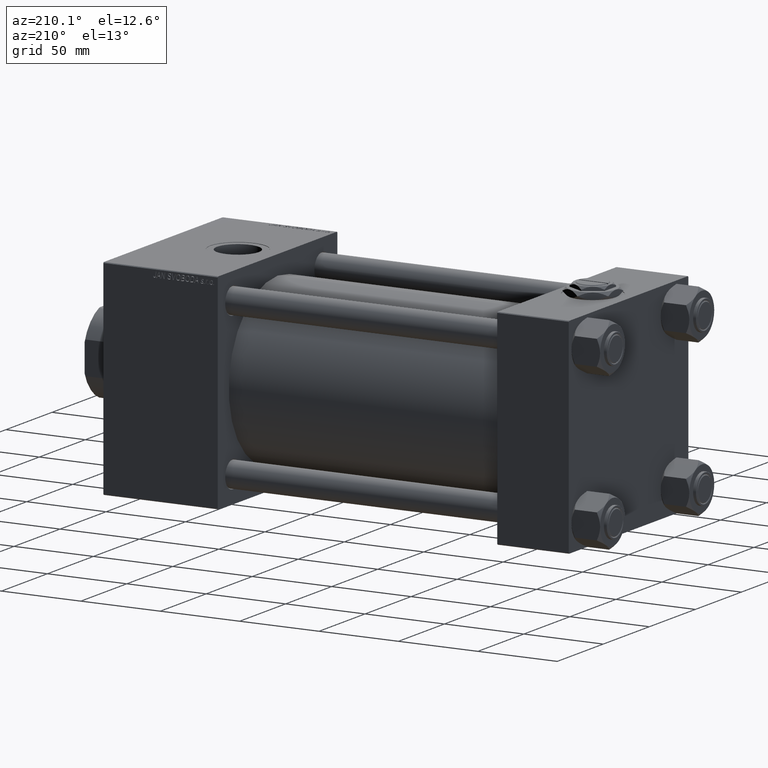
[diagram: clean part render]
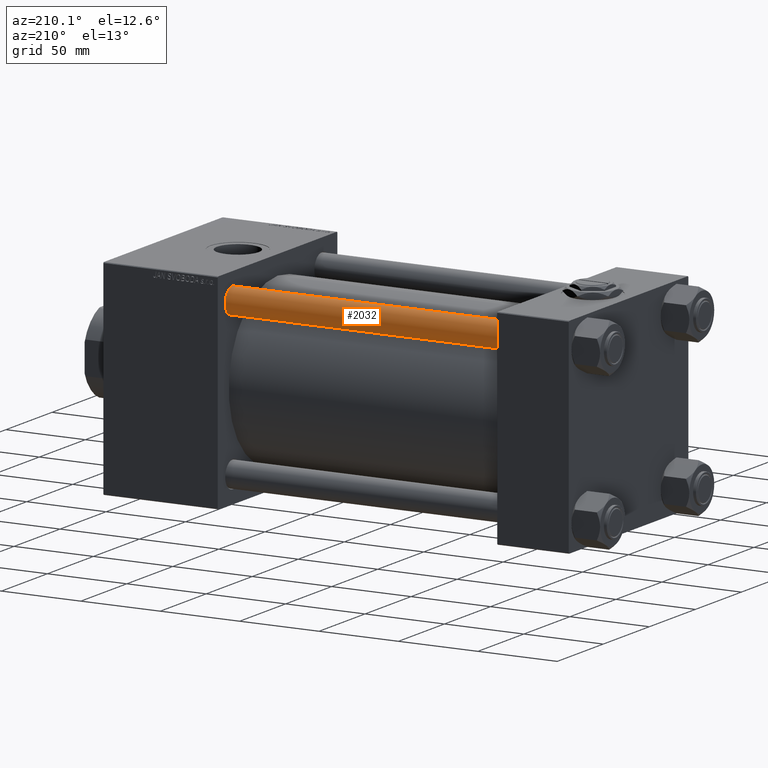
[diagram: same view with one face highlighted and labeled with its STEP entity id]
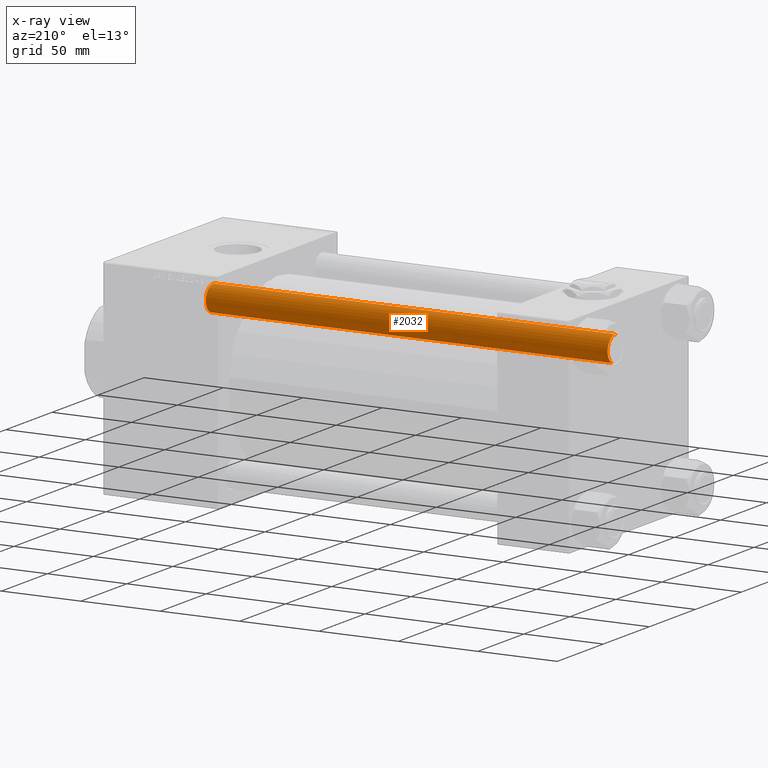
[diagram: x-ray of the same camera — body ghosted, the highlighted face saturated]
A machine part, auxiliary view. The second image highlights one B-rep face of the part: STEP entity #2032.
The next image is the same camera in x-ray: the body ghosted, the highlighted face saturated — about 0% of this face is hidden behind the body in this view.
In plain terms, the highlighted cylindrical surface (edge-blend (fillet) strip) has radius 8 mm, axis along (-1, 0, 0).
Its self-contained STEP definition (entity closure, byte-faithful):
#555 = LINE ( 'NONE', #37261, #51946 ) ;
#756 = CIRCLE ( 'NONE', #51238, 8.000000000000000000 ) ;
#990 = EDGE_CURVE ( 'NONE', #1294, #23990, #555, .T. ) ;
#1294 = VERTEX_POINT ( 'NONE', #33973 ) ;
#2032 = ADVANCED_FACE ( 'NONE', ( #7578 ), #39439, .T. ) ;
#2412 = CARTESIAN_POINT ( 'NONE',  ( -8.000000000000000000, 0.000000000000000000, 254.0000000000000000 ) ) ;
#2967 = CARTESIAN_POINT ( 'NONE',  ( 0.000000000000000000, 0.000000000000000000, 253.5000000000000568 ) ) ;
#7578 = FACE_OUTER_BOUND ( 'NONE', #45939, .T. ) ;
#11788 = AXIS2_PLACEMENT_3D ( 'NONE', #2967, #43387, #35382 ) ;
#14424 = CARTESIAN_POINT ( 'NONE',  ( -8.000000000000000000, 0.000000000000000000, 0.5000000000000004441 ) ) ;
#18016 = ORIENTED_EDGE ( 'NONE', *, *, #990, .T. ) ;
#18397 = CARTESIAN_POINT ( 'NONE',  ( 0.000000000000000000, 0.000000000000000000, 0.5000000000000004441 ) ) ;
#20540 = CARTESIAN_POINT ( 'NONE',  ( -8.000000000000000000, 0.000000000000000000, 253.5000000000000568 ) ) ;
#23990 = VERTEX_POINT ( 'NONE', #48621 ) ;
#24185 = DIRECTION ( 'NONE',  ( -0.000000000000000000, -0.000000000000000000, -1.000000000000000000 ) ) ;
#25574 = ORIENTED_EDGE ( 'NONE', *, *, #29936, .T. ) ;
#29433 = ORIENTED_EDGE ( 'NONE', *, *, #42412, .F. ) ;
#29936 = EDGE_CURVE ( 'NONE', #37003, #1294, #51980, .T. ) ;
#31329 = DIRECTION ( 'NONE',  ( -0.000000000000000000, -0.000000000000000000, -1.000000000000000000 ) ) ;
#31524 = DIRECTION ( 'NONE',  ( -0.000000000000000000, -0.000000000000000000, 1.000000000000000000 ) ) ;
#33461 = EDGE_CURVE ( 'NONE', #23990, #38380, #756, .T. ) ;
#33973 = CARTESIAN_POINT ( 'NONE',  ( 8.000000000000000000, 9.797174393178825657E-16, 253.5000000000000568 ) ) ;
#35382 = DIRECTION ( 'NONE',  ( 1.000000000000000000, 0.000000000000000000, 0.000000000000000000 ) ) ;
#37003 = VERTEX_POINT ( 'NONE', #20540 ) ;
#37261 = CARTESIAN_POINT ( 'NONE',  ( 8.000000000000000000, 9.797174393178825657E-16, 254.0000000000000000 ) ) ;
#38380 = VERTEX_POINT ( 'NONE', #14424 ) ;
#39301 = ORIENTED_EDGE ( 'NONE', *, *, #33461, .T. ) ;
#39439 = CYLINDRICAL_SURFACE ( 'NONE', #40845, 8.000000000000000000 ) ;
#39633 = LINE ( 'NONE', #2412, #45931 ) ;
#39976 = CARTESIAN_POINT ( 'NONE',  ( 0.000000000000000000, 0.000000000000000000, 254.0000000000000000 ) ) ;
#40845 = AXIS2_PLACEMENT_3D ( 'NONE', #39976, #24185, #47477 ) ;
#42412 = EDGE_CURVE ( 'NONE', #37003, #38380, #39633, .T. ) ;
#43387 = DIRECTION ( 'NONE',  ( 0.000000000000000000, 0.000000000000000000, -1.000000000000000000 ) ) ;
#43554 = DIRECTION ( 'NONE',  ( 1.000000000000000000, 0.000000000000000000, 0.000000000000000000 ) ) ;
#45931 = VECTOR ( 'NONE', #31329, 1000.000000000000000 ) ;
#45939 = EDGE_LOOP ( 'NONE', ( #25574, #18016, #39301, #29433 ) ) ;
#46344 = DIRECTION ( 'NONE',  ( -0.000000000000000000, -0.000000000000000000, -1.000000000000000000 ) ) ;
#47477 = DIRECTION ( 'NONE',  ( -1.000000000000000000, 0.000000000000000000, 0.000000000000000000 ) ) ;
#48621 = CARTESIAN_POINT ( 'NONE',  ( 8.000000000000000000, 9.797174393178825657E-16, 0.5000000000000004441 ) ) ;
#51238 = AXIS2_PLACEMENT_3D ( 'NONE', #18397, #31524, #43554 ) ;
#51946 = VECTOR ( 'NONE', #46344, 1000.000000000000000 ) ;
#51980 = CIRCLE ( 'NONE', #11788, 8.000000000000000000 ) ;